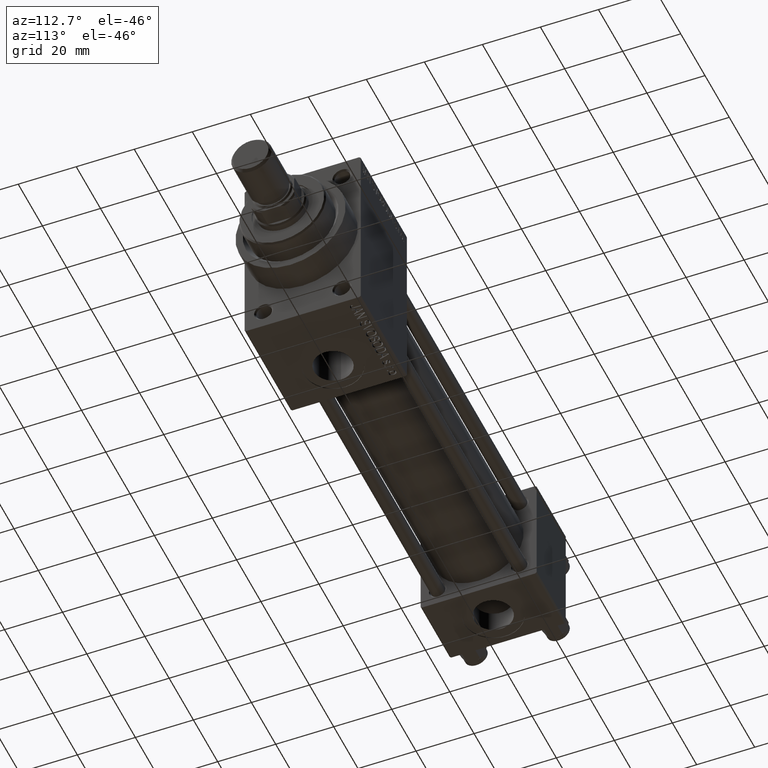
[diagram: clean part render]
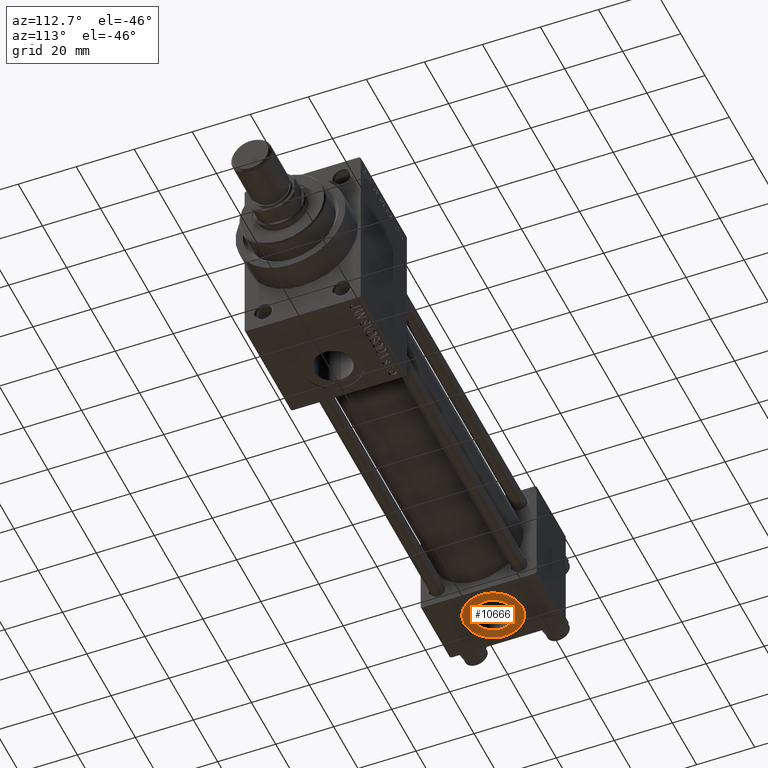
[diagram: same view with one face highlighted and labeled with its STEP entity id]
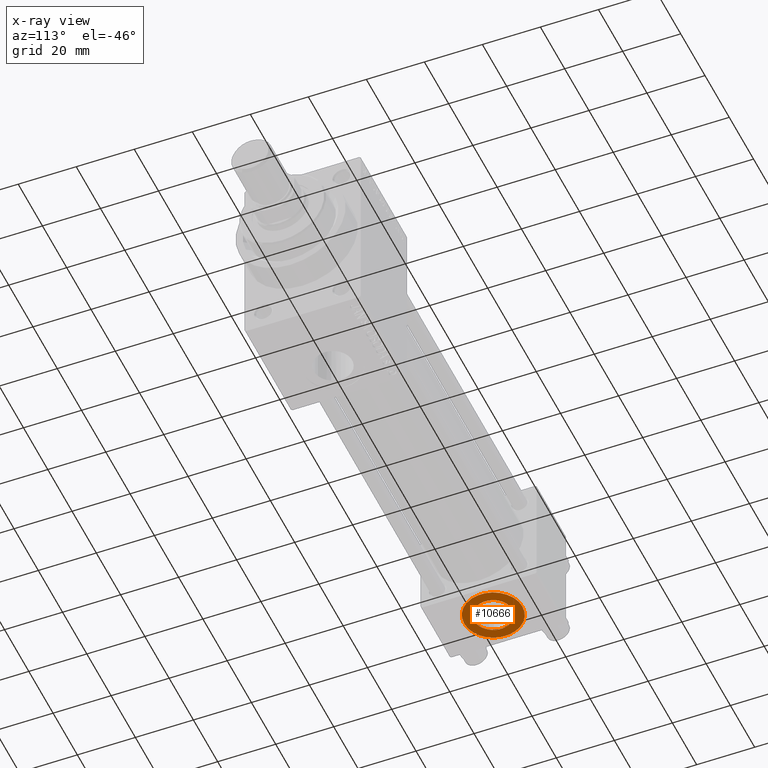
[diagram: x-ray of the same camera — body ghosted, the highlighted face saturated]
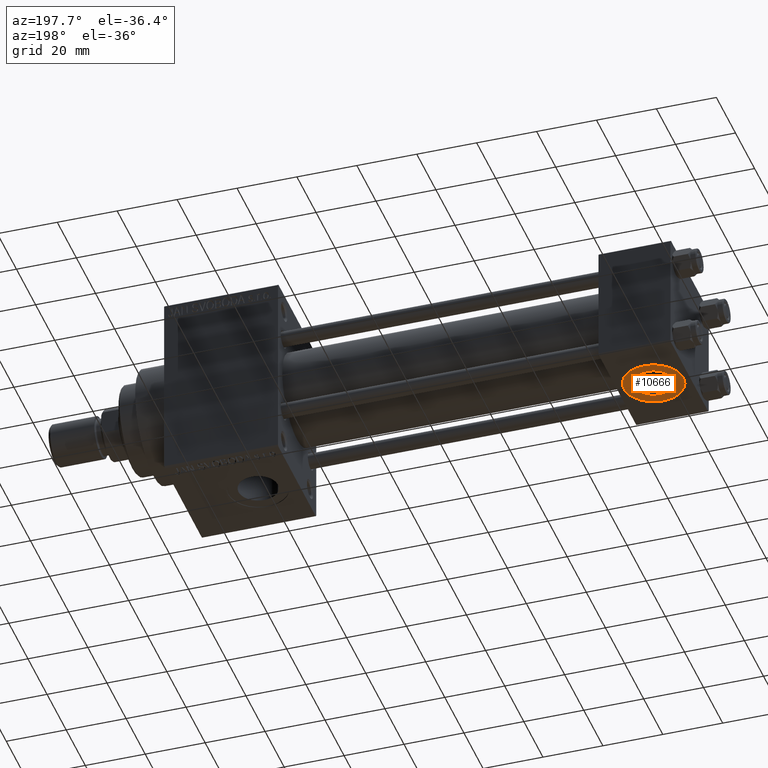
[diagram: same view with one face highlighted and labeled with its STEP entity id]
A machine part, auxiliary view. The second image highlights one B-rep face of the part: STEP entity #10666.
The next image is the same camera in x-ray: the body ghosted, the highlighted face saturated — about 0% of this face is hidden behind the body in this view.
A second angle (auxiliary view) of the same face is appended — the face is thin or edge-on in the first view.
In plain terms, the highlighted planar face has unit normal (0, -0, -1).
Its self-contained STEP definition (entity closure, byte-faithful):
#749 = AXIS2_PLACEMENT_3D ( 'NONE', #40524, #17929, #40291 ) ;
#833 = DIRECTION ( 'NONE',  ( 0.000000000000000000, 1.000000000000000000, -1.734723475976806848E-16 ) ) ;
#4384 = CIRCLE ( 'NONE', #27438, 6.580000000000000071 ) ;
#4919 = EDGE_LOOP ( 'NONE', ( #37378, #20601 ) ) ;
#5772 = VERTEX_POINT ( 'NONE', #34298 ) ;
#6521 = ORIENTED_EDGE ( 'NONE', *, *, #18919, .F. ) ;
#8277 = FACE_OUTER_BOUND ( 'NONE', #4919, .T. ) ;
#9508 = EDGE_CURVE ( 'NONE', #5772, #29535, #9707, .T. ) ;
#9707 = CIRCLE ( 'NONE', #22740, 6.580000000000000071 ) ;
#9778 = AXIS2_PLACEMENT_3D ( 'NONE', #33535, #26109, #833 ) ;
#10010 = DIRECTION ( 'NONE',  ( 0.000000000000000000, -1.734723475976806848E-16, -1.000000000000000000 ) ) ;
#10666 = ADVANCED_FACE ( 'NONE', ( #37623, #8277 ), #33769, .T. ) ;
#12561 = CARTESIAN_POINT ( 'NONE',  ( 12.00000000000000000, 9.999999999999996447, -19.80000000000000426 ) ) ;
#17929 = DIRECTION ( 'NONE',  ( 0.000000000000000000, -1.734723475976806848E-16, -1.000000000000000000 ) ) ;
#18919 = EDGE_CURVE ( 'NONE', #29535, #5772, #4384, .T. ) ;
#19168 = CARTESIAN_POINT ( 'NONE',  ( 12.00000000000000000, 6.579999999999994742, -19.80000000000000426 ) ) ;
#19971 = CIRCLE ( 'NONE', #749, 10.00000000000000178 ) ;
#20601 = ORIENTED_EDGE ( 'NONE', *, *, #28715, .T. ) ;
#21992 = CARTESIAN_POINT ( 'NONE',  ( 12.00000000000000178, -10.00000000000000711, -19.80000000000000426 ) ) ;
#22740 = AXIS2_PLACEMENT_3D ( 'NONE', #32113, #28525, #24897 ) ;
#24897 = DIRECTION ( 'NONE',  ( 0.000000000000000000, 1.000000000000000000, 0.000000000000000000 ) ) ;
#24899 = CARTESIAN_POINT ( 'NONE',  ( 12.00000000000000000, -4.904328641410901403E-15, -19.80000000000000426 ) ) ;
#26109 = DIRECTION ( 'NONE',  ( 0.000000000000000000, -1.734723475976806848E-16, -1.000000000000000000 ) ) ;
#26150 = EDGE_CURVE ( 'NONE', #34273, #38619, #31514, .T. ) ;
#27438 = AXIS2_PLACEMENT_3D ( 'NONE', #28274, #27807, #31645 ) ;
#27807 = DIRECTION ( 'NONE',  ( 0.000000000000000000, -1.734723475976806848E-16, -1.000000000000000000 ) ) ;
#28274 = CARTESIAN_POINT ( 'NONE',  ( 12.00000000000000000, -4.904328641410902191E-15, -19.80000000000000426 ) ) ;
#28525 = DIRECTION ( 'NONE',  ( 0.000000000000000000, -1.734723475976806848E-16, -1.000000000000000000 ) ) ;
#28715 = EDGE_CURVE ( 'NONE', #38619, #34273, #19971, .T. ) ;
#29535 = VERTEX_POINT ( 'NONE', #19168 ) ;
#31514 = CIRCLE ( 'NONE', #42949, 10.00000000000000178 ) ;
#31645 = DIRECTION ( 'NONE',  ( 0.000000000000000000, 1.000000000000000000, 0.000000000000000000 ) ) ;
#32113 = CARTESIAN_POINT ( 'NONE',  ( 12.00000000000000000, -4.904328641410902191E-15, -19.80000000000000426 ) ) ;
#33535 = CARTESIAN_POINT ( 'NONE',  ( 12.00000000000000000, -4.904328641410901403E-15, -19.80000000000000426 ) ) ;
#33769 = PLANE ( 'NONE',  #9778 ) ;
#34273 = VERTEX_POINT ( 'NONE', #12561 ) ;
#34298 = CARTESIAN_POINT ( 'NONE',  ( 12.00000000000000000, -6.580000000000006288, -19.80000000000000426 ) ) ;
#35481 = DIRECTION ( 'NONE',  ( 0.000000000000000000, 1.000000000000000000, 0.000000000000000000 ) ) ;
#37378 = ORIENTED_EDGE ( 'NONE', *, *, #26150, .T. ) ;
#37623 = FACE_BOUND ( 'NONE', #40026, .T. ) ;
#38619 = VERTEX_POINT ( 'NONE', #21992 ) ;
#40026 = EDGE_LOOP ( 'NONE', ( #6521, #41162 ) ) ;
#40291 = DIRECTION ( 'NONE',  ( 0.000000000000000000, 1.000000000000000000, 0.000000000000000000 ) ) ;
#40524 = CARTESIAN_POINT ( 'NONE',  ( 12.00000000000000000, -4.904328641410901403E-15, -19.80000000000000426 ) ) ;
#41162 = ORIENTED_EDGE ( 'NONE', *, *, #9508, .F. ) ;
#42949 = AXIS2_PLACEMENT_3D ( 'NONE', #24899, #10010, #35481 ) ;